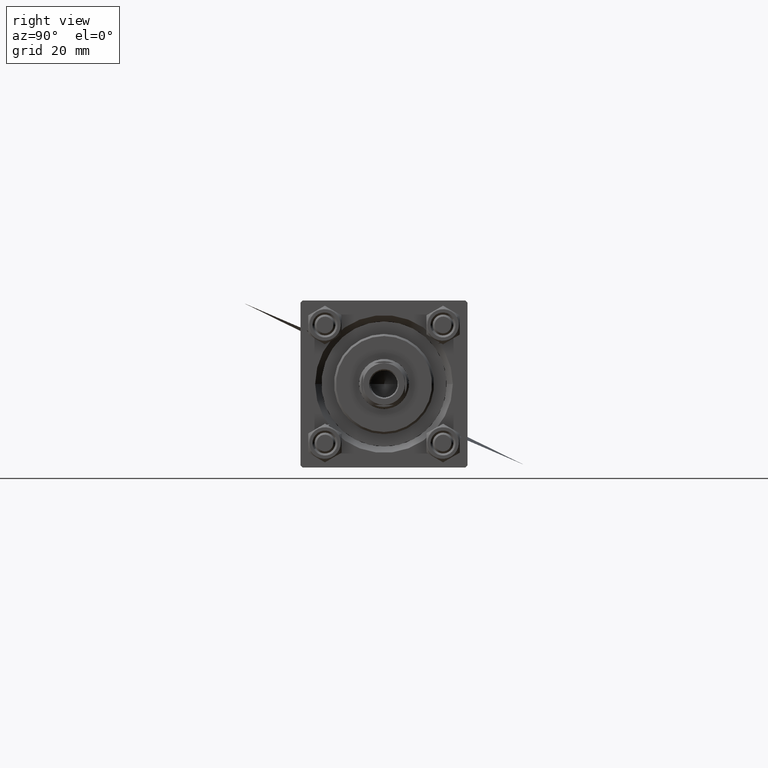
[diagram: clean part render]
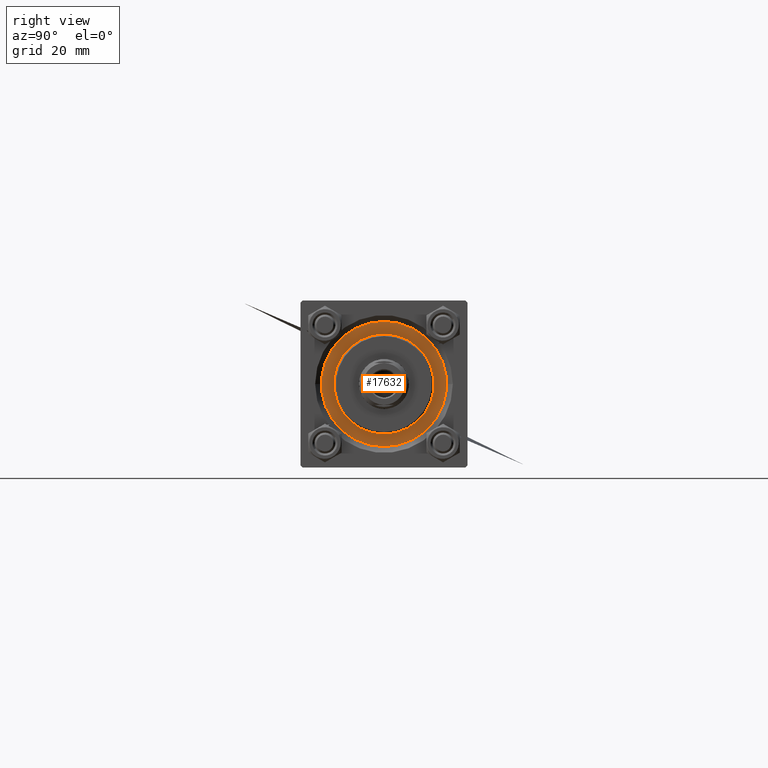
[diagram: same view with one face highlighted and labeled with its STEP entity id]
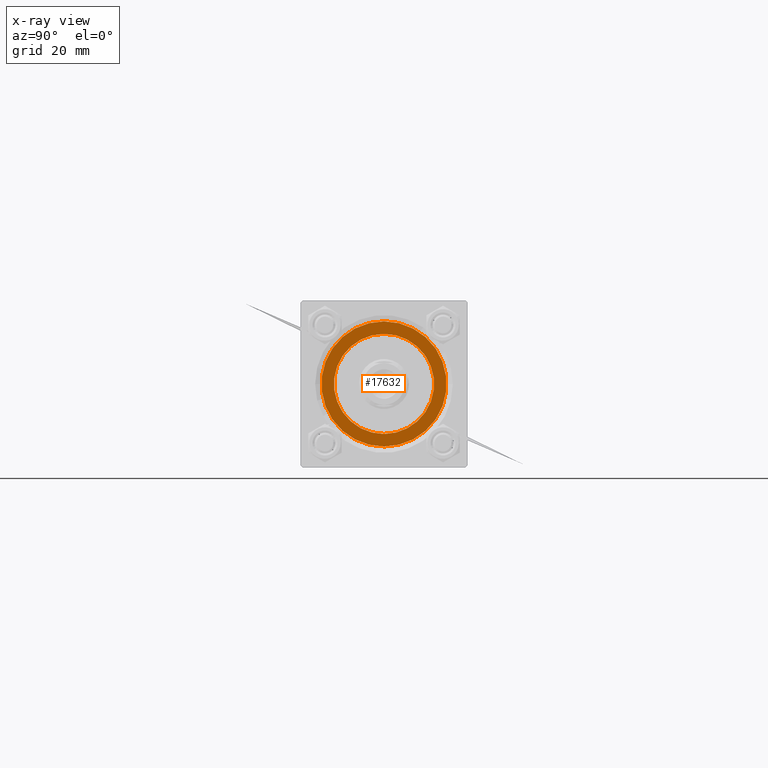
[diagram: x-ray of the same camera — body ghosted, the highlighted face saturated]
A machine part, right view. The second image highlights one B-rep face of the part: STEP entity #17632.
The next image is the same camera in x-ray: the body ghosted, the highlighted face saturated — about 0% of this face is hidden behind the body in this view.
In plain terms, the highlighted planar face has unit normal (1, 0, 0).
Its self-contained STEP definition (entity closure, byte-faithful):
#652 = DIRECTION ( 'NONE',  ( 1.000000000000000000, 0.000000000000000000, -0.000000000000000000 ) ) ;
#668 = DIRECTION ( 'NONE',  ( 1.000000000000000000, 0.000000000000000000, 0.000000000000000000 ) ) ;
#2223 = VERTEX_POINT ( 'NONE', #37044 ) ;
#2891 = AXIS2_PLACEMENT_3D ( 'NONE', #14847, #31616, #668 ) ;
#3546 = DIRECTION ( 'NONE',  ( 0.000000000000000000, 0.000000000000000000, 1.000000000000000000 ) ) ;
#4364 = DIRECTION ( 'NONE',  ( 0.000000000000000000, 0.000000000000000000, 1.000000000000000000 ) ) ;
#7336 = CIRCLE ( 'NONE', #2891, 15.00000000000000000 ) ;
#8546 = ORIENTED_EDGE ( 'NONE', *, *, #27429, .T. ) ;
#11615 = EDGE_CURVE ( 'NONE', #22309, #19524, #20697, .T. ) ;
#12387 = EDGE_CURVE ( 'NONE', #2223, #24829, #29680, .T. ) ;
#13551 = CIRCLE ( 'NONE', #29792, 12.00000000000000178 ) ;
#14847 = CARTESIAN_POINT ( 'NONE',  ( 0.000000000000000000, 0.000000000000000000, 28.69999999999999929 ) ) ;
#17632 = ADVANCED_FACE ( 'NONE', ( #32982, #25299 ), #32509, .T. ) ;
#17724 = DIRECTION ( 'NONE',  ( 1.000000000000000000, 0.000000000000000000, 0.000000000000000000 ) ) ;
#18216 = DIRECTION ( 'NONE',  ( 0.000000000000000000, 0.000000000000000000, 1.000000000000000000 ) ) ;
#19226 = DIRECTION ( 'NONE',  ( 1.000000000000000000, 0.000000000000000000, 0.000000000000000000 ) ) ;
#19231 = AXIS2_PLACEMENT_3D ( 'NONE', #35420, #3546, #17724 ) ;
#19524 = VERTEX_POINT ( 'NONE', #27615 ) ;
#19968 = AXIS2_PLACEMENT_3D ( 'NONE', #33895, #37848, #19226 ) ;
#20697 = CIRCLE ( 'NONE', #19968, 12.00000000000000178 ) ;
#21496 = EDGE_LOOP ( 'NONE', ( #45566, #40797 ) ) ;
#22309 = VERTEX_POINT ( 'NONE', #26586 ) ;
#24829 = VERTEX_POINT ( 'NONE', #38153 ) ;
#25299 = FACE_OUTER_BOUND ( 'NONE', #37237, .T. ) ;
#25991 = CARTESIAN_POINT ( 'NONE',  ( 0.000000000000000000, 0.000000000000000000, 28.69999999999999929 ) ) ;
#26586 = CARTESIAN_POINT ( 'NONE',  ( 12.00000000000000178, 1.469576158976824144E-15, 28.69999999999999929 ) ) ;
#27429 = EDGE_CURVE ( 'NONE', #24829, #2223, #7336, .T. ) ;
#27615 = CARTESIAN_POINT ( 'NONE',  ( -12.00000000000000178, 0.000000000000000000, 28.69999999999999929 ) ) ;
#28488 = DIRECTION ( 'NONE',  ( 1.000000000000000000, 0.000000000000000000, 0.000000000000000000 ) ) ;
#29426 = AXIS2_PLACEMENT_3D ( 'NONE', #25991, #4364, #652 ) ;
#29680 = CIRCLE ( 'NONE', #19231, 15.00000000000000000 ) ;
#29792 = AXIS2_PLACEMENT_3D ( 'NONE', #38961, #18216, #28488 ) ;
#31616 = DIRECTION ( 'NONE',  ( 0.000000000000000000, 0.000000000000000000, 1.000000000000000000 ) ) ;
#32309 = ORIENTED_EDGE ( 'NONE', *, *, #12387, .T. ) ;
#32509 = PLANE ( 'NONE',  #29426 ) ;
#32982 = FACE_BOUND ( 'NONE', #21496, .T. ) ;
#33895 = CARTESIAN_POINT ( 'NONE',  ( 0.000000000000000000, 0.000000000000000000, 28.69999999999999929 ) ) ;
#35420 = CARTESIAN_POINT ( 'NONE',  ( 0.000000000000000000, 0.000000000000000000, 28.69999999999999929 ) ) ;
#36366 = EDGE_CURVE ( 'NONE', #19524, #22309, #13551, .T. ) ;
#37044 = CARTESIAN_POINT ( 'NONE',  ( 15.00000000000000000, 1.836970198721029589E-15, 28.69999999999999929 ) ) ;
#37237 = EDGE_LOOP ( 'NONE', ( #8546, #32309 ) ) ;
#37848 = DIRECTION ( 'NONE',  ( 0.000000000000000000, 0.000000000000000000, 1.000000000000000000 ) ) ;
#38153 = CARTESIAN_POINT ( 'NONE',  ( -15.00000000000000000, 0.000000000000000000, 28.69999999999999929 ) ) ;
#38961 = CARTESIAN_POINT ( 'NONE',  ( 0.000000000000000000, 0.000000000000000000, 28.69999999999999929 ) ) ;
#40797 = ORIENTED_EDGE ( 'NONE', *, *, #11615, .F. ) ;
#45566 = ORIENTED_EDGE ( 'NONE', *, *, #36366, .F. ) ;